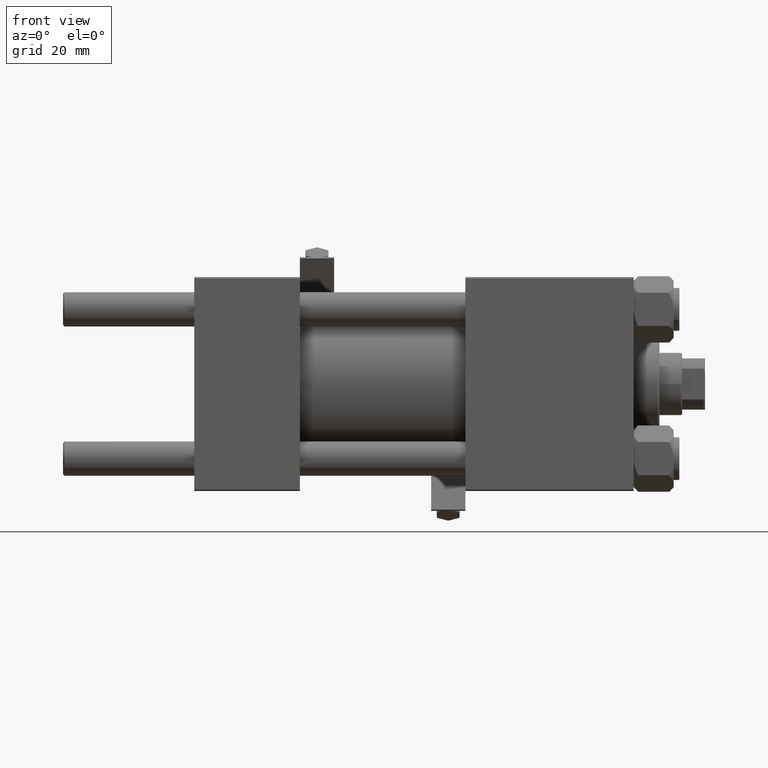
[diagram: clean part render]
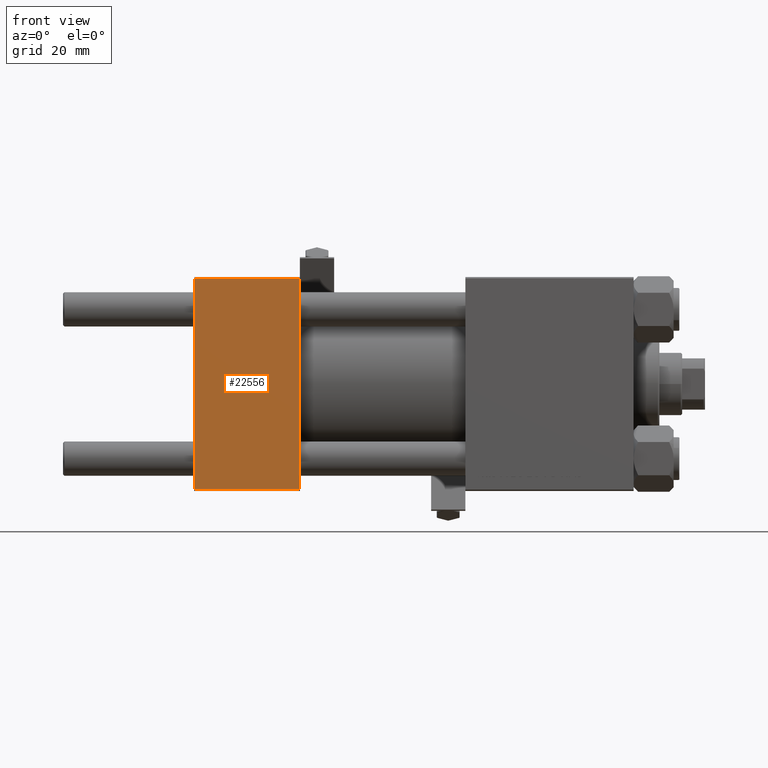
[diagram: same view with one face highlighted and labeled with its STEP entity id]
A machine part, front view. The second image highlights one B-rep face of the part: STEP entity #22556.
In plain terms, the highlighted planar face has unit normal (0, 1, 0).
Its self-contained STEP definition (entity closure, byte-faithful):
#30 = CARTESIAN_POINT ( 'NONE',  ( 37.00000000000000000, -37.50000000000000711, 37.49999999999999289 ) ) ;
#726 = LINE ( 'NONE', #24855, #31608 ) ;
#2760 = CARTESIAN_POINT ( 'NONE',  ( 37.00000000000000000, -37.50000000000000000, -37.00000000000003553 ) ) ;
#3380 = PLANE ( 'NONE',  #8536 ) ;
#6068 = VECTOR ( 'NONE', #9530, 1000.000000000000000 ) ;
#8536 = AXIS2_PLACEMENT_3D ( 'NONE', #30, #23916, #42677 ) ;
#8739 = EDGE_LOOP ( 'NONE', ( #19898, #46961, #13354, #30860 ) ) ;
#9530 = DIRECTION ( 'NONE',  ( -1.000000000000000000, 0.000000000000000000, 0.000000000000000000 ) ) ;
#11472 = CARTESIAN_POINT ( 'NONE',  ( 37.00000000000000000, -37.50000000000000711, 36.99999999999999289 ) ) ;
#12458 = LINE ( 'NONE', #32976, #50489 ) ;
#13354 = ORIENTED_EDGE ( 'NONE', *, *, #42919, .F. ) ;
#13886 = LINE ( 'NONE', #25697, #6068 ) ;
#17273 = CARTESIAN_POINT ( 'NONE',  ( 0.000000000000000000, -37.50000000000000000, -37.00000000000003553 ) ) ;
#18761 = VERTEX_POINT ( 'NONE', #17273 ) ;
#19898 = ORIENTED_EDGE ( 'NONE', *, *, #43773, .T. ) ;
#20456 = VERTEX_POINT ( 'NONE', #11472 ) ;
#22556 = ADVANCED_FACE ( 'NONE', ( #31626 ), #3380, .F. ) ;
#23916 = DIRECTION ( 'NONE',  ( -0.000000000000000000, 1.000000000000000000, 9.251858538542971581E-17 ) ) ;
#24855 = CARTESIAN_POINT ( 'NONE',  ( 37.00000000000000000, -37.50000000000000711, 37.49999999999999289 ) ) ;
#25480 = VECTOR ( 'NONE', #33580, 1000.000000000000000 ) ;
#25697 = CARTESIAN_POINT ( 'NONE',  ( 37.00000000000000000, -37.50000000000000711, 36.99999999999999289 ) ) ;
#28184 = EDGE_CURVE ( 'NONE', #18761, #35046, #41287, .T. ) ;
#30860 = ORIENTED_EDGE ( 'NONE', *, *, #35307, .T. ) ;
#30926 = CARTESIAN_POINT ( 'NONE',  ( 0.000000000000000000, -37.50000000000000711, 36.99999999999999289 ) ) ;
#31608 = VECTOR ( 'NONE', #47995, 1000.000000000000000 ) ;
#31626 = FACE_OUTER_BOUND ( 'NONE', #8739, .T. ) ;
#32976 = CARTESIAN_POINT ( 'NONE',  ( 0.000000000000000000, -37.50000000000000711, 37.49999999999999289 ) ) ;
#33580 = DIRECTION ( 'NONE',  ( 1.000000000000000000, 0.000000000000000000, 0.000000000000000000 ) ) ;
#35046 = VERTEX_POINT ( 'NONE', #41167 ) ;
#35307 = EDGE_CURVE ( 'NONE', #20456, #46836, #13886, .T. ) ;
#40186 = DIRECTION ( 'NONE',  ( 0.000000000000000000, 9.251858538542971581E-17, -1.000000000000000000 ) ) ;
#41167 = CARTESIAN_POINT ( 'NONE',  ( 37.00000000000000000, -37.50000000000000000, -37.00000000000003553 ) ) ;
#41287 = LINE ( 'NONE', #2760, #25480 ) ;
#42677 = DIRECTION ( 'NONE',  ( 0.000000000000000000, -9.251858538542971581E-17, 1.000000000000000000 ) ) ;
#42919 = EDGE_CURVE ( 'NONE', #20456, #35046, #726, .T. ) ;
#43773 = EDGE_CURVE ( 'NONE', #46836, #18761, #12458, .T. ) ;
#46836 = VERTEX_POINT ( 'NONE', #30926 ) ;
#46961 = ORIENTED_EDGE ( 'NONE', *, *, #28184, .T. ) ;
#47995 = DIRECTION ( 'NONE',  ( 0.000000000000000000, 9.251858538542971581E-17, -1.000000000000000000 ) ) ;
#50489 = VECTOR ( 'NONE', #40186, 1000.000000000000000 ) ;